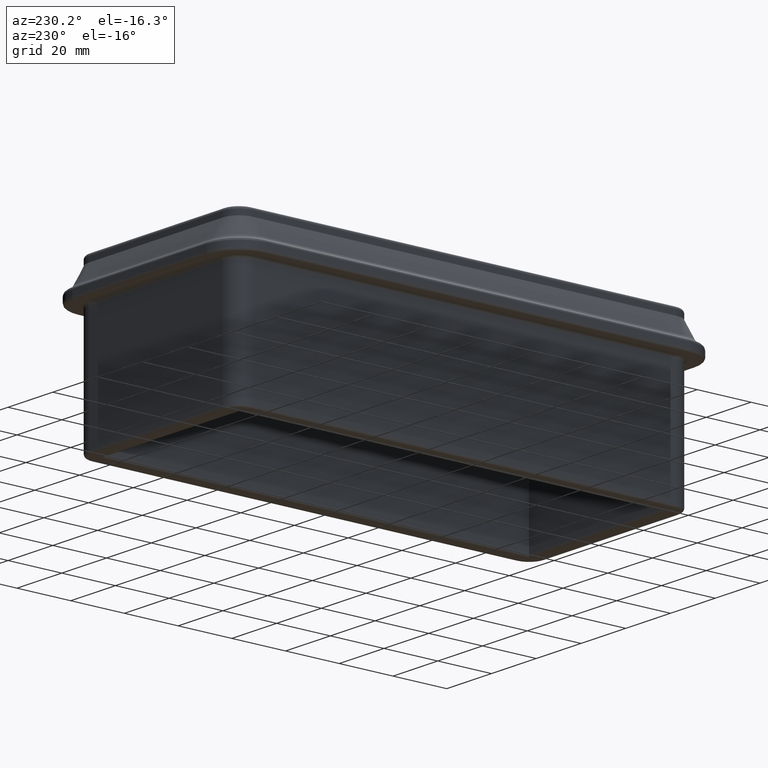
[diagram: clean part render]
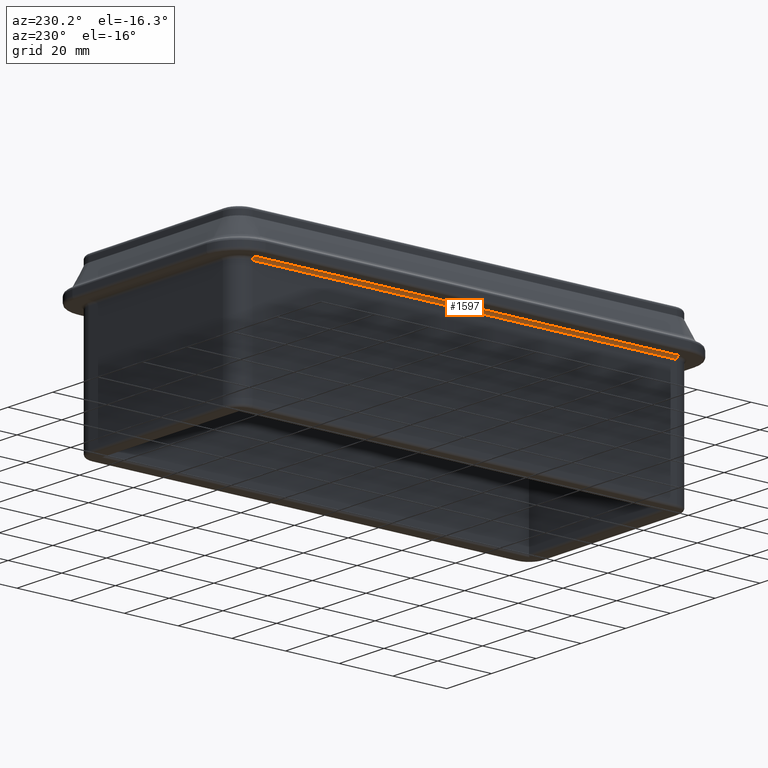
[diagram: same view with one face highlighted and labeled with its STEP entity id]
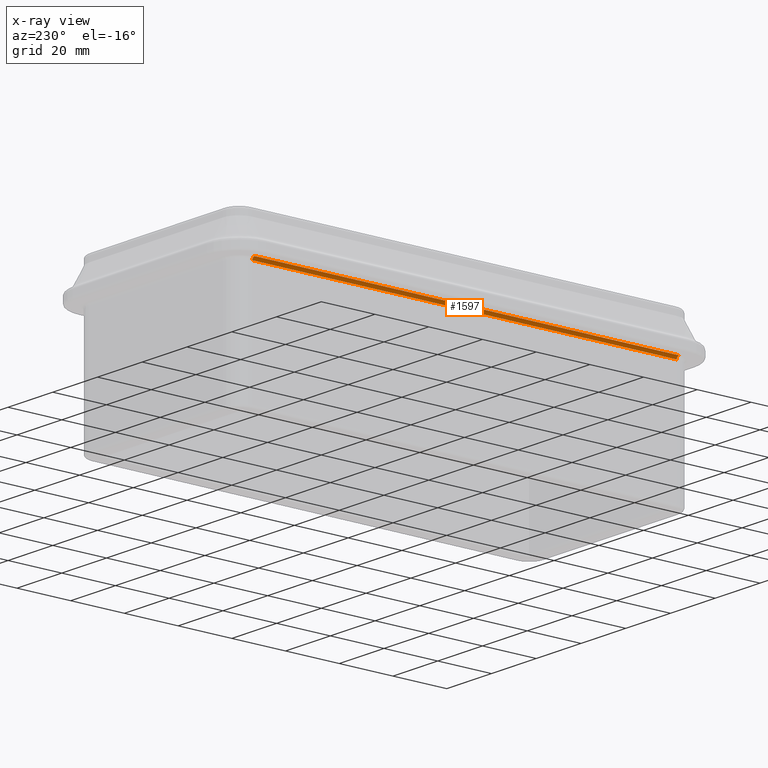
[diagram: x-ray of the same camera — body ghosted, the highlighted face saturated]
A machine part, auxiliary view. The second image highlights one B-rep face of the part: STEP entity #1597.
The next image is the same camera in x-ray: the body ghosted, the highlighted face saturated — about 0% of this face is hidden behind the body in this view.
In plain terms, the highlighted cylindrical surface (edge-blend (fillet) strip) has radius 1 mm, axis along (0, -1, 0).
Its self-contained STEP definition (entity closure, byte-faithful):
#110=FACE_OUTER_BOUND('',#219,.T.);
#219=EDGE_LOOP('',(#1132,#1133,#1134,#1135));
#333=LINE('',#2620,#461);
#334=LINE('',#2621,#462);
#461=VECTOR('',#2069,10.);
#462=VECTOR('',#2070,10.);
#602=CIRCLE('',#1760,1.00000000000003);
#605=CIRCLE('',#1764,1.);
#708=VERTEX_POINT('',#2611);
#709=VERTEX_POINT('',#2612);
#710=VERTEX_POINT('',#2617);
#711=VERTEX_POINT('',#2618);
#863=EDGE_CURVE('',#708,#709,#602,.T.);
#866=EDGE_CURVE('',#710,#711,#605,.T.);
#867=EDGE_CURVE('',#711,#709,#333,.T.);
#868=EDGE_CURVE('',#708,#710,#334,.T.);
#1132=ORIENTED_EDGE('',*,*,#866,.T.);
#1133=ORIENTED_EDGE('',*,*,#867,.T.);
#1134=ORIENTED_EDGE('',*,*,#863,.F.);
#1135=ORIENTED_EDGE('',*,*,#868,.T.);
#1536=CYLINDRICAL_SURFACE('',#1763,1.);
#1597=ADVANCED_FACE('',(#110),#1536,.F.);
#1760=AXIS2_PLACEMENT_3D('',#2613,#2059,#2060);
#1763=AXIS2_PLACEMENT_3D('',#2616,#2065,#2066);
#1764=AXIS2_PLACEMENT_3D('',#2619,#2067,#2068);
#2059=DIRECTION('center_axis',(0.,-1.,0.));
#2060=DIRECTION('ref_axis',(1.,0.,4.4408920985005E-15));
#2065=DIRECTION('center_axis',(3.09176032174094E-16,-1.,0.));
#2066=DIRECTION('ref_axis',(0.707106781186546,2.18620468930651E-16,0.707106781186549));
#2067=DIRECTION('center_axis',(0.,-1.,0.));
#2068=DIRECTION('ref_axis',(1.,0.,4.44089209850062E-15));
#2069=DIRECTION('',(-3.09176032174094E-16,1.,0.));
#2070=DIRECTION('',(3.09176032174094E-16,-1.,0.));
#2611=CARTESIAN_POINT('',(-36.,79.,14.));
#2612=CARTESIAN_POINT('',(-37.,79.,15.));
#2613=CARTESIAN_POINT('Origin',(-37.,79.,14.));
#2616=CARTESIAN_POINT('Origin',(-37.,1.85365084744377E-14,14.));
#2617=CARTESIAN_POINT('',(-35.9999999999999,-79.,14.));
#2618=CARTESIAN_POINT('',(-36.9999999999999,-79.,15.));
#2619=CARTESIAN_POINT('Origin',(-36.9999999999999,-79.,14.));
#2620=CARTESIAN_POINT('',(-37.,1.85365084744377E-14,15.));
#2621=CARTESIAN_POINT('',(-36.,1.88456845066118E-14,14.));